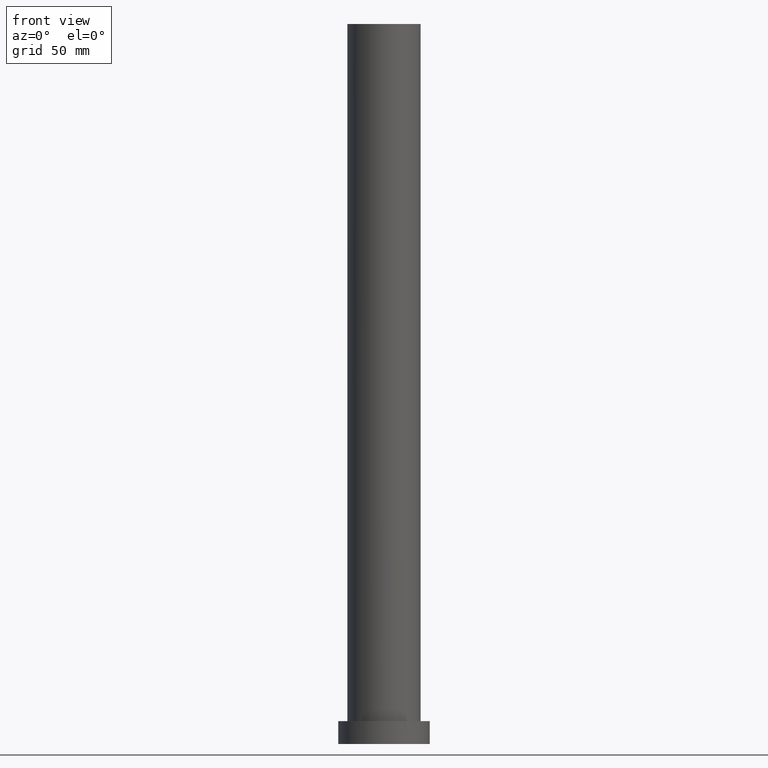
[diagram: clean part render]
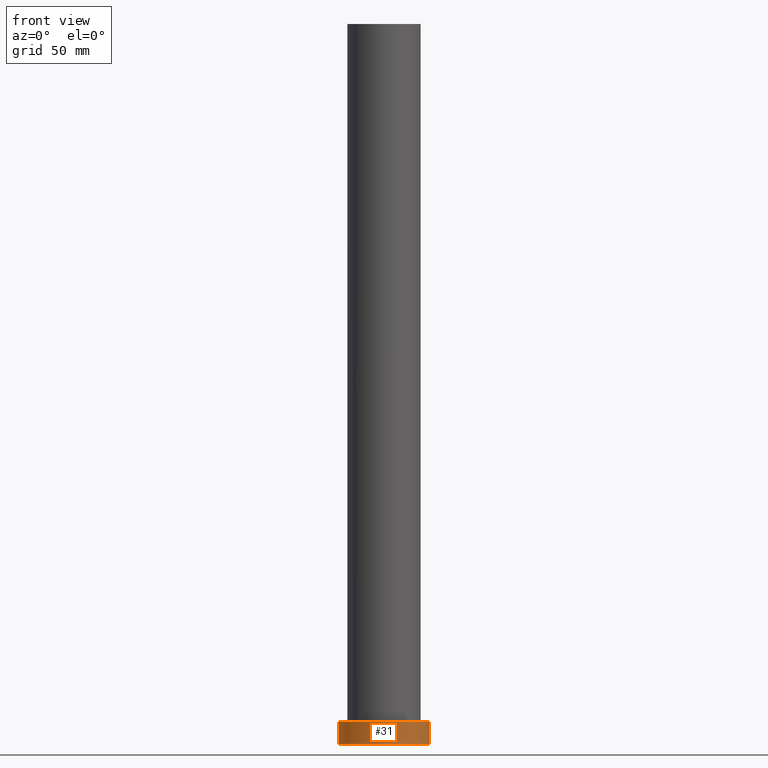
[diagram: same view with one face highlighted and labeled with its STEP entity id]
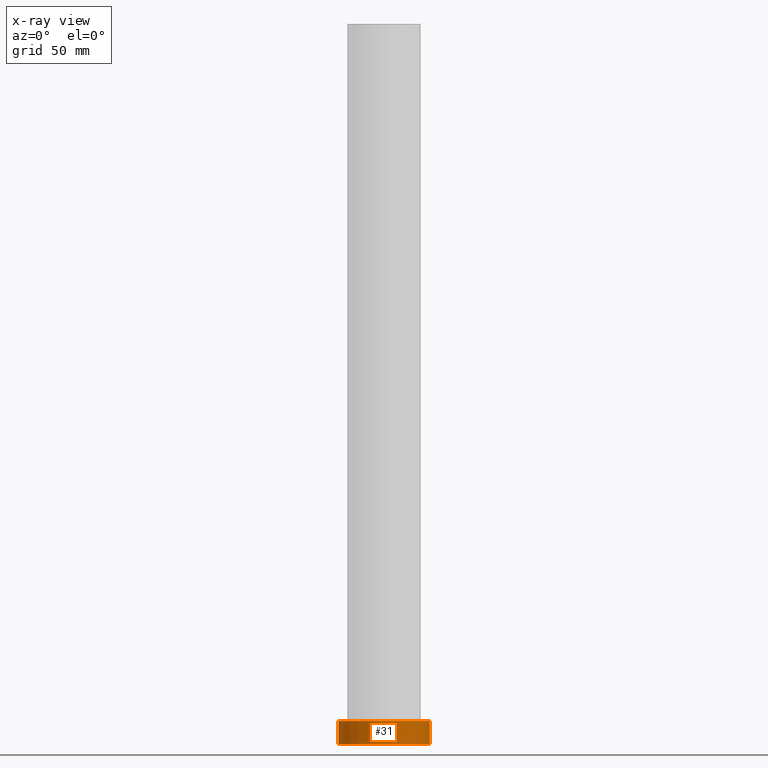
[diagram: x-ray of the same camera — body ghosted, the highlighted face saturated]
A machine part, front view. The second image highlights one B-rep face of the part: STEP entity #31.
The next image is the same camera in x-ray: the body ghosted, the highlighted face saturated — about 0% of this face is hidden behind the body in this view.
In plain terms, the highlighted cylindrical surface (partial cylindrical patch) has radius 20 mm, axis along (-0, -0, -1).
Its self-contained STEP definition (entity closure, byte-faithful):
#2 = VERTEX_POINT ( 'NONE', #158 ) ;
#4 = DIRECTION ( 'NONE',  ( -0.000000000000000000, -0.000000000000000000, -1.000000000000000000 ) ) ;
#6 = AXIS2_PLACEMENT_3D ( 'NONE', #30, #92, #118 ) ;
#23 = VERTEX_POINT ( 'NONE', #127 ) ;
#28 = AXIS2_PLACEMENT_3D ( 'NONE', #58, #105, #186 ) ;
#30 = CARTESIAN_POINT ( 'NONE',  ( 0.000000000000000000, 0.000000000000000000, 0.000000000000000000 ) ) ;
#31 = ADVANCED_FACE ( 'NONE', ( #104 ), #200, .T. ) ;
#38 = EDGE_CURVE ( 'NONE', #247, #2, #236, .T. ) ;
#58 = CARTESIAN_POINT ( 'NONE',  ( 0.000000000000000000, 0.000000000000000000, 10.00000000000000000 ) ) ;
#63 = VECTOR ( 'NONE', #4, 1000.000000000000000 ) ;
#70 = ORIENTED_EDGE ( 'NONE', *, *, #171, .T. ) ;
#74 = CARTESIAN_POINT ( 'NONE',  ( 20.00000000000000000, 2.449293598294706513E-15, 10.00000000000000000 ) ) ;
#75 = VECTOR ( 'NONE', #216, 1000.000000000000000 ) ;
#85 = DIRECTION ( 'NONE',  ( 1.000000000000000000, 0.000000000000000000, 0.000000000000000000 ) ) ;
#92 = DIRECTION ( 'NONE',  ( 0.000000000000000000, 0.000000000000000000, 1.000000000000000000 ) ) ;
#104 = FACE_OUTER_BOUND ( 'NONE', #208, .T. ) ;
#105 = DIRECTION ( 'NONE',  ( -0.000000000000000000, -0.000000000000000000, -1.000000000000000000 ) ) ;
#117 = DIRECTION ( 'NONE',  ( 0.000000000000000000, 0.000000000000000000, 1.000000000000000000 ) ) ;
#118 = DIRECTION ( 'NONE',  ( 1.000000000000000000, 0.000000000000000000, 0.000000000000000000 ) ) ;
#127 = CARTESIAN_POINT ( 'NONE',  ( -20.00000000000000000, 0.000000000000000000, 0.000000000000000000 ) ) ;
#130 = AXIS2_PLACEMENT_3D ( 'NONE', #193, #117, #85 ) ;
#136 = ORIENTED_EDGE ( 'NONE', *, *, #223, .T. ) ;
#148 = ORIENTED_EDGE ( 'NONE', *, *, #38, .F. ) ;
#151 = CIRCLE ( 'NONE', #130, 20.00000000000000000 ) ;
#153 = LINE ( 'NONE', #252, #75 ) ;
#158 = CARTESIAN_POINT ( 'NONE',  ( 20.00000000000000000, 2.449293598294706513E-15, 0.000000000000000000 ) ) ;
#162 = CARTESIAN_POINT ( 'NONE',  ( 20.00000000000000000, 2.449293598294706513E-15, 10.00000000000000000 ) ) ;
#171 = EDGE_CURVE ( 'NONE', #23, #2, #179, .T. ) ;
#173 = ORIENTED_EDGE ( 'NONE', *, *, #195, .F. ) ;
#176 = VERTEX_POINT ( 'NONE', #253 ) ;
#179 = CIRCLE ( 'NONE', #6, 20.00000000000000000 ) ;
#186 = DIRECTION ( 'NONE',  ( -1.000000000000000000, 0.000000000000000000, 0.000000000000000000 ) ) ;
#193 = CARTESIAN_POINT ( 'NONE',  ( 0.000000000000000000, 0.000000000000000000, 10.00000000000000000 ) ) ;
#195 = EDGE_CURVE ( 'NONE', #176, #247, #151, .T. ) ;
#200 = CYLINDRICAL_SURFACE ( 'NONE', #28, 20.00000000000000000 ) ;
#208 = EDGE_LOOP ( 'NONE', ( #148, #173, #136, #70 ) ) ;
#216 = DIRECTION ( 'NONE',  ( -0.000000000000000000, -0.000000000000000000, -1.000000000000000000 ) ) ;
#223 = EDGE_CURVE ( 'NONE', #176, #23, #153, .T. ) ;
#236 = LINE ( 'NONE', #162, #63 ) ;
#247 = VERTEX_POINT ( 'NONE', #74 ) ;
#252 = CARTESIAN_POINT ( 'NONE',  ( -20.00000000000000000, 0.000000000000000000, 10.00000000000000000 ) ) ;
#253 = CARTESIAN_POINT ( 'NONE',  ( -20.00000000000000000, 0.000000000000000000, 10.00000000000000000 ) ) ;